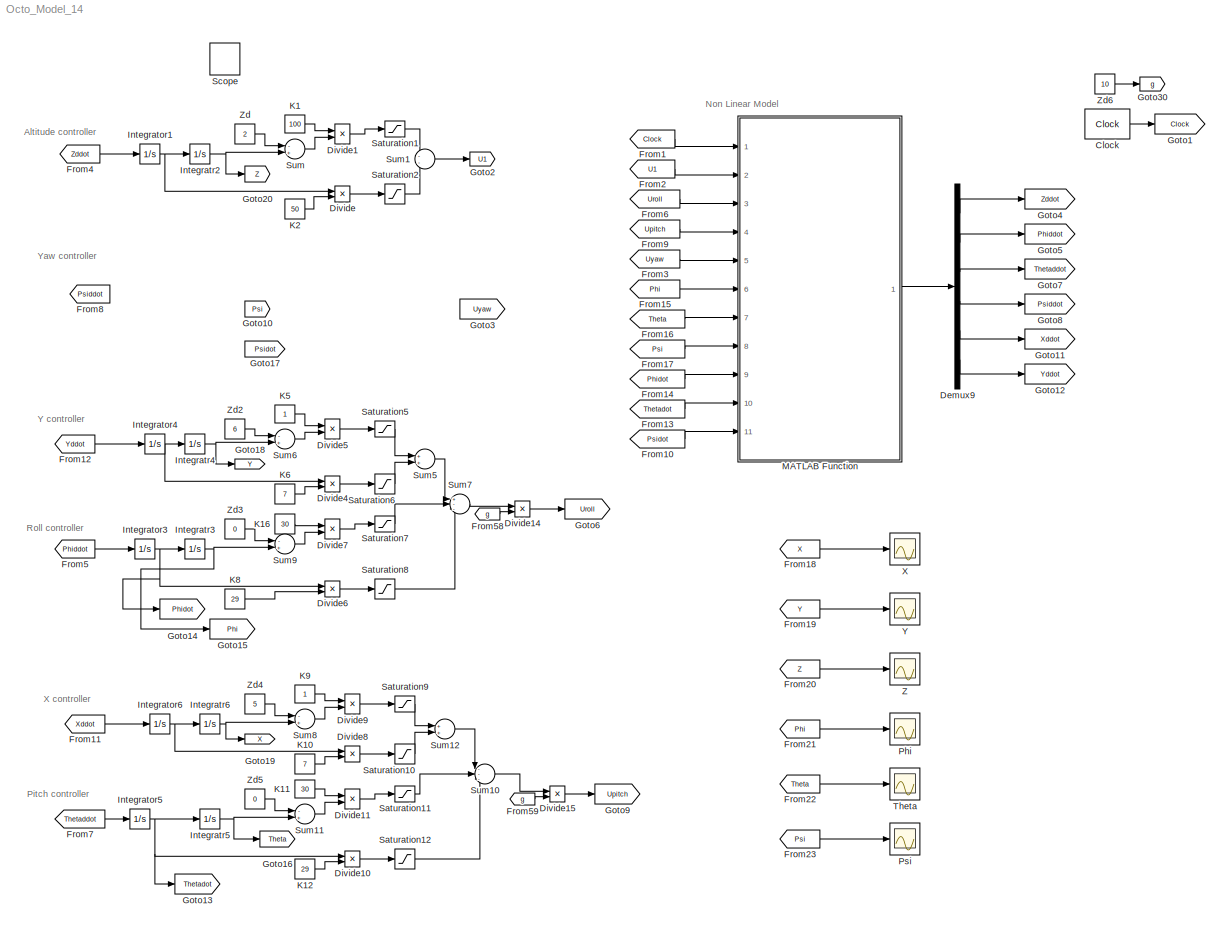
MODEL Octo_Model_14
KIND model
BLOCK [Clock] Clock
  DisplayTime = on
  SID = 1
BLOCK [Demux] Demux9
  DisplayOption = bar
  Outputs = 6
  Ports = [1, 6]
  SID = 2
BLOCK [Product] Divide
  InputSameDT = off
  Inputs = **
  OutDataTypeStr = Inherit: Inherit via internal rule
  Ports = [2, 1]
  RndMeth = Floor
  SID = 3
  SaturateOnIntegerOverflow = off
BLOCK [Product] Divide1
  InputSameDT = off
  Inputs = **
  OutDataTypeStr = Inherit: Inherit via internal rule
  Ports = [2, 1]
  RndMeth = Floor
  SID = 4
  SaturateOnIntegerOverflow = off
BLOCK [Product] Divide10
  InputSameDT = off
  Inputs = **
  OutDataTypeStr = Inherit: Inherit via internal rule
  Ports = [2, 1]
  RndMeth = Floor
  SID = 5
  SaturateOnIntegerOverflow = off
BLOCK [Product] Divide11
  InputSameDT = off
  Inputs = **
  OutDataTypeStr = Inherit: Inherit via internal rule
  Ports = [2, 1]
  RndMeth = Floor
  SID = 6
  SaturateOnIntegerOverflow = off
BLOCK [Product] Divide14
  InputSameDT = off
  Inputs = */
  OutDataTypeStr = Inherit: Inherit via internal rule
  Ports = [2, 1]
  RndMeth = Floor
  SID = 7
  SaturateOnIntegerOverflow = off
BLOCK [Product] Divide15
  InputSameDT = off
  Inputs = */
  OutDataTypeStr = Inherit: Inherit via internal rule
  Ports = [2, 1]
  RndMeth = Floor
  SID = 8
  SaturateOnIntegerOverflow = off
BLOCK [Product] Divide4
  InputSameDT = off
  Inputs = **
  OutDataTypeStr = Inherit: Inherit via internal rule
  Ports = [2, 1]
  RndMeth = Floor
  SID = 11
  SaturateOnIntegerOverflow = off
BLOCK [Product] Divide5
  InputSameDT = off
  Inputs = **
  OutDataTypeStr = Inherit: Inherit via internal rule
  Ports = [2, 1]
  RndMeth = Floor
  SID = 12
  SaturateOnIntegerOverflow = off
BLOCK [Product] Divide6
  InputSameDT = off
  Inputs = **
  OutDataTypeStr = Inherit: Inherit via internal rule
  Ports = [2, 1]
  RndMeth = Floor
  SID = 13
  SaturateOnIntegerOverflow = off
BLOCK [Product] Divide7
  InputSameDT = off
  Inputs = **
  OutDataTypeStr = Inherit: Inherit via internal rule
  Ports = [2, 1]
  RndMeth = Floor
  SID = 14
  SaturateOnIntegerOverflow = off
BLOCK [Product] Divide8
  InputSameDT = off
  Inputs = **
  OutDataTypeStr = Inherit: Inherit via internal rule
  Ports = [2, 1]
  RndMeth = Floor
  SID = 15
  SaturateOnIntegerOverflow = off
BLOCK [Product] Divide9
  InputSameDT = off
  Inputs = **
  OutDataTypeStr = Inherit: Inherit via internal rule
  Ports = [2, 1]
  RndMeth = Floor
  SID = 16
  SaturateOnIntegerOverflow = off
BLOCK [From] From1
  GotoTag = Clock
  SID = 187
BLOCK [From] From10
  GotoTag = Psidot
  SID = 208
BLOCK [From] From11
  GotoTag = Xddot
  SID = 216
BLOCK [From] From12
  GotoTag = Yddot
  SID = 217
BLOCK [From] From13
  GotoTag = Thetadot
  SID = 227
BLOCK [From] From14
  GotoTag = Phidot
  SID = 229
BLOCK [From] From15
  GotoTag = Phi
  SID = 231
BLOCK [From] From16
  GotoTag = Theta
  SID = 233
BLOCK [From] From17
  GotoTag = Psi
  SID = 235
BLOCK [From] From18
  GotoTag = X
  SID = 249
BLOCK [From] From19
  GotoTag = Y
  SID = 250
BLOCK [From] From2
  GotoTag = U1
  SID = 190
BLOCK [From] From20
  GotoTag = Z
  SID = 251
BLOCK [From] From21
  GotoTag = Phi
  SID = 252
BLOCK [From] From22
  GotoTag = Theta
  SID = 253
BLOCK [From] From23
  GotoTag = Psi
  SID = 254
BLOCK [From] From3
  GotoTag = Uyaw
  SID = 192
BLOCK [From] From4
  GotoTag = Zddot
  SID = 194
BLOCK [From] From5
  GotoTag = Phiddot
  SID = 196
BLOCK [From] From58
  GotoTag = g
  SID = 43
BLOCK [From] From59
  GotoTag = g
  SID = 44
BLOCK [From] From6
  GotoTag = Uroll
  SID = 197
BLOCK [From] From7
  GotoTag = Thetaddot
  SID = 200
BLOCK [From] From8
  GotoTag = Psiddot
  SID = 264
BLOCK [From] From9
  GotoTag = Upitch
  SID = 206
BLOCK [Goto] Goto1
  GotoTag = Clock
  SID = 185
BLOCK [Goto] Goto10
  GotoTag = Psi
  SID = 274
BLOCK [Goto] Goto11
  GotoTag = Xddot
  SID = 215
BLOCK [Goto] Goto12
  GotoTag = Yddot
  SID = 218
BLOCK [Goto] Goto13
  GotoTag = Thetadot
  SID = 226
BLOCK [Goto] Goto14
  GotoTag = Phidot
  SID = 228
BLOCK [Goto] Goto15
  GotoTag = Phi
  SID = 230
BLOCK [Goto] Goto16
  GotoTag = Theta
  SID = 232
BLOCK [Goto] Goto17
  GotoTag = Psidot
  SID = 275
BLOCK [Goto] Goto18
  GotoTag = Y
  SID = 247
BLOCK [Goto] Goto19
  GotoTag = X
  SID = 248
BLOCK [Goto] Goto2
  GotoTag = U1
  SID = 189
BLOCK [Goto] Goto20
  GotoTag = Z
  SID = 262
BLOCK [Goto] Goto3
  GotoTag = Uyaw
  SID = 273
BLOCK [Goto] Goto30
  GotoTag = g
  SID = 68
BLOCK [Goto] Goto4
  GotoTag = Zddot
  SID = 193
BLOCK [Goto] Goto5
  GotoTag = Phiddot
  SID = 195
BLOCK [Goto] Goto6
  GotoTag = Uroll
  SID = 198
BLOCK [Goto] Goto7
  GotoTag = Thetaddot
  SID = 199
BLOCK [Goto] Goto8
  GotoTag = Psiddot
  SID = 204
BLOCK [Goto] Goto9
  GotoTag = Upitch
  SID = 205
BLOCK [Integrator] Integrator1
  Ports = [1, 1]
  SID = 88
BLOCK [Integrator] Integrator3
  Ports = [1, 1]
  SID = 90
BLOCK [Integrator] Integrator4
  IgnoreLimit = on
  Ports = [1, 1]
  SID = 91
BLOCK [Integrator] Integrator5
  Ports = [1, 1]
  SID = 92
BLOCK [Integrator] Integrator6
  Ports = [1, 1]
  SID = 93
BLOCK [Integrator] Integratr2
  Ports = [1, 1]
  SID = 95
BLOCK [Integrator] Integratr3
  Ports = [1, 1]
  SID = 96
BLOCK [Integrator] Integratr4
  IgnoreLimit = on
  Ports = [1, 1]
  SID = 97
BLOCK [Integrator] Integratr5
  Ports = [1, 1]
  SID = 98
BLOCK [Integrator] Integratr6
  Ports = [1, 1]
  SID = 99
BLOCK [Constant] K1
  SID = 100
  Value = 100
BLOCK [Constant] K10
  SID = 101
  Value = 7
BLOCK [Constant] K11
  SID = 102
  Value = 30
BLOCK [Constant] K12
  SID = 103
  Value = 29
BLOCK [Constant] K16
  SID = 104
  Value = 30
BLOCK [Constant] K2
  SID = 105
  Value = 50
BLOCK [Constant] K5
  SID = 108
BLOCK [Constant] K6
  SID = 109
  Value = 7
BLOCK [Constant] K8
  SID = 110
  Value = 29
BLOCK [Constant] K9
  SID = 111
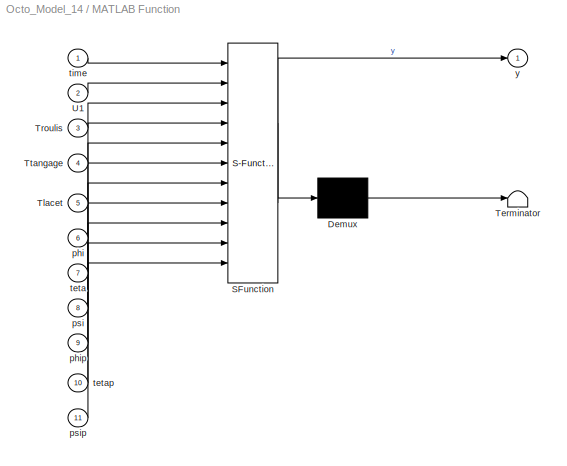
BLOCK [SubSystem] MATLAB Function
  ErrorFcn = Stateflow.Translate.translate
  PermitHierarchicalResolution = ParametersOnly
  Ports = [11, 1]
  RequestExecContextInheritance = off
  SFBlockType = MATLAB Function
  SID = 112
  TreatAsAtomicUnit = on
  Variant = off
BLOCK [Demux] MATLAB Function/ Demux 
  Outputs = 1
  Ports = [1, 1]
  SID = 112::166
BLOCK [S-Function] MATLAB Function/ SFunction 
  EnableBusSupport = on
  FunctionName = sf_sfun
  PortCounts = [11 2]
  Ports = [11, 2]
  SFunctionDeploymentMode = off
  SID = 112::165
  Tag = Stateflow S-Function Octo_Model_14 2
BLOCK [Terminator] MATLAB Function/ Terminator 
  SID = 112::167
BLOCK [Inport] MATLAB Function/Tlacet
  IconDisplay = Port number
  Port = 5
  SID = 112::158
BLOCK [Inport] MATLAB Function/Troulis
  IconDisplay = Port number
  Port = 3
  SID = 112::156
BLOCK [Inport] MATLAB Function/Ttangage
  IconDisplay = Port number
  Port = 4
  SID = 112::157
BLOCK [Inport] MATLAB Function/U1
  IconDisplay = Port number
  Port = 2
  SID = 112::155
BLOCK [Inport] MATLAB Function/phi
  IconDisplay = Port number
  Port = 6
  SID = 112::159
BLOCK [Inport] MATLAB Function/phip
  IconDisplay = Port number
  Port = 9
  SID = 112::141
BLOCK [Inport] MATLAB Function/psi
  IconDisplay = Port number
  Port = 8
  SID = 112::161
BLOCK [Inport] MATLAB Function/psip
  IconDisplay = Port number
  Port = 11
  SID = 112::143
BLOCK [Inport] MATLAB Function/teta
  IconDisplay = Port number
  Port = 7
  SID = 112::160
BLOCK [Inport] MATLAB Function/tetap
  IconDisplay = Port number
  Port = 10
  SID = 112::142
BLOCK [Inport] MATLAB Function/time
  IconDisplay = Port number
  SID = 112::140
BLOCK [Outport] MATLAB Function/y
  IconDisplay = Port number
  SID = 112::162
BLOCK [Scope] Phi
  DataFormat = StructureWithTime
  Decimation = 1
  Grid = on
  LimitDataPoints = off
  MaxDataPoints = 5000
  Ports = [1]
  SID = 259
  SampleInput = off
  SampleTime = -1
  SaveName = ScopeData4
  SaveToWorkspace = off
  ShowLegends = off
  TickLabels = OneTimeTick
  TimeRange = auto
  YMax = 0.06505
  YMin = -0.10323
  ZoomMode = on
BLOCK [Scope] Psi
  DataFormat = StructureWithTime
  Decimation = 1
  Grid = on
  LimitDataPoints = off
  MaxDataPoints = 5000
  Ports = [1]
  SID = 261
  SampleInput = off
  SampleTime = -1
  SaveName = ScopeData6
  SaveToWorkspace = off
  ShowLegends = off
  TickLabels = OneTimeTick
  TimeRange = auto
  YMax = 0.00004
  YMin = -0.00039
  ZoomMode = on
BLOCK [Saturate] Saturation1
  InputPortMap = u0
  LowerLimit = -20
  Ports = [1, 1]
  SID = 120
  UpperLimit = 20
BLOCK [Saturate] Saturation10
  InputPortMap = u0
  LowerLimit = -8
  Ports = [1, 1]
  SID = 121
  UpperLimit = 8
BLOCK [Saturate] Saturation11
  InputPortMap = u0
  LowerLimit = -15
  Ports = [1, 1]
  SID = 122
  UpperLimit = 15
BLOCK [Saturate] Saturation12
  InputPortMap = u0
  LowerLimit = -30
  Ports = [1, 1]
  SID = 123
  UpperLimit = 30
BLOCK [Saturate] Saturation2
  InputPortMap = u0
  LowerLimit = -20
  Ports = [1, 1]
  SID = 124
  UpperLimit = 20
BLOCK [Saturate] Saturation5
  InputPortMap = u0
  LowerLimit = -15
  Ports = [1, 1]
  SID = 127
  UpperLimit = 15
BLOCK [Saturate] Saturation6
  InputPortMap = u0
  LowerLimit = -20
  Ports = [1, 1]
  SID = 128
  UpperLimit = 20
BLOCK [Saturate] Saturation7
  InputPortMap = u0
  LowerLimit = -20
  Ports = [1, 1]
  SID = 129
  UpperLimit = 20
BLOCK [Saturate] Saturation8
  InputPortMap = u0
  LowerLimit = -30
  Ports = [1, 1]
  SID = 130
  UpperLimit = 30
BLOCK [Saturate] Saturation9
  InputPortMap = u0
  LowerLimit = -6
  Ports = [1, 1]
  SID = 131
  UpperLimit = 6
BLOCK [SignalViewerScope] Scope
  DataFormat = StructureWithTime
  Decimation = 1
  Grid = on
  IOType = viewer
  LimitDataPoints = off
  MaxDataPoints = 5000
  Ports = []
  SID = 255
  SampleInput = off
  SampleTime = -1
  SaveName = ScopeData
  SaveToWorkspace = off
  ShowLegends = off
  TickLabels = OneTimeTick
  TimeRange = auto
  YMax = 5.78876
  YMin = -0.6432
  ZoomMode = on
BLOCK [Sum] Sum
  InputSameDT = off
  Inputs = -+
  OutDataTypeStr = Inherit: Inherit via internal rule
  Ports = [2, 1]
  SID = 143
  SaturateOnIntegerOverflow = off
BLOCK [Sum] Sum1
  IconShape = round
  InputSameDT = off
  Inputs = --
  OutDataTypeStr = Inherit: Inherit via internal rule
  Ports = [2, 1]
  SID = 144
  SaturateOnIntegerOverflow = off
BLOCK [Sum] Sum10
  IconShape = round
  InputSameDT = off
  Inputs = ---
  OutDataTypeStr = Inherit: Inherit via internal rule
  Ports = [3, 1]
  SID = 145
  SaturateOnIntegerOverflow = off
BLOCK [Sum] Sum11
  InputSameDT = off
  Inputs = -+
  OutDataTypeStr = Inherit: Inherit via internal rule
  Ports = [2, 1]
  SID = 146
  SaturateOnIntegerOverflow = off
BLOCK [Sum] Sum12
  InputSameDT = off
  OutDataTypeStr = Inherit: Inherit via internal rule
  Ports = [2, 1]
  SID = 147
  SaturateOnIntegerOverflow = off
BLOCK [Sum] Sum5
  InputSameDT = off
  OutDataTypeStr = Inherit: Inherit via internal rule
  Ports = [2, 1]
  SID = 151
  SaturateOnIntegerOverflow = off
BLOCK [Sum] Sum6
  InputSameDT = off
  Inputs = -+
  OutDataTypeStr = Inherit: Inherit via internal rule
  Ports = [2, 1]
  SID = 152
  SaturateOnIntegerOverflow = off
BLOCK [Sum] Sum7
  IconShape = round
  InputSameDT = off
  Inputs = +--
  OutDataTypeStr = Inherit: Inherit via internal rule
  Ports = [3, 1]
  SID = 153
  SaturateOnIntegerOverflow = off
BLOCK [Sum] Sum8
  InputSameDT = off
  Inputs = -+
  OutDataTypeStr = Inherit: Inherit via internal rule
  Ports = [2, 1]
  SID = 154
  SaturateOnIntegerOverflow = off
BLOCK [Sum] Sum9
  InputSameDT = off
  Inputs = -+
  OutDataTypeStr = Inherit: Inherit via internal rule
  Ports = [2, 1]
  SID = 155
  SaturateOnIntegerOverflow = off
BLOCK [Scope] Theta
  DataFormat = StructureWithTime
  Decimation = 1
  Grid = on
  LimitDataPoints = off
  MaxDataPoints = 5000
  Ports = [1]
  SID = 260
  SampleInput = off
  SampleTime = -1
  SaveName = ScopeData5
  SaveToWorkspace = off
  ShowLegends = off
  TickLabels = OneTimeTick
  TimeRange = auto
  YMax = 0.08607
  YMin = -0.0542
  ZoomMode = on
BLOCK [Scope] X
  DataFormat = StructureWithTime
  Decimation = 1
  Grid = on
  LimitDataPoints = off
  MaxDataPoints = 5000
  Ports = [1]
  SID = 256
  SampleInput = off
  SampleTime = -1
  SaveName = ScopeData1
  SaveToWorkspace = off
  ShowLegends = off
  TickLabels = OneTimeTick
  TimeRange = auto
  YMax = 5.625
  YMin = -0.625
  ZoomMode = on
BLOCK [Scope] Y
  DataFormat = StructureWithTime
  Decimation = 1
  Grid = on
  LimitDataPoints = off
  MaxDataPoints = 5000
  Ports = [1]
  SID = 257
  SampleInput = off
  SampleTime = -1
  SaveName = ScopeData2
  SaveToWorkspace = off
  ShowLegends = off
  TickLabels = OneTimeTick
  TimeRange = auto
  YMax = 6.75
  YMin = -0.75
  ZoomMode = on
BLOCK [Scope] Z
  DataFormat = StructureWithTime
  Decimation = 1
  Grid = on
  LimitDataPoints = off
  MaxDataPoints = 5000
  Ports = [1]
  SID = 258
  SampleInput = off
  SampleTime = -1
  SaveName = ScopeData3
  SaveToWorkspace = off
  ShowLegends = off
  TickLabels = OneTimeTick
  TimeRange = auto
  YMax = 2.25
  YMin = -0.25
  ZoomMode = on
BLOCK [Constant] Zd
  SID = 163
  Value = 2
BLOCK [Constant] Zd2
  SID = 165
  Value = 6
BLOCK [Constant] Zd3
  SID = 166
  Value = 0
BLOCK [Constant] Zd4
  SID = 167
  Value = 5
BLOCK [Constant] Zd5
  SID = 168
  Value = 0
BLOCK [Constant] Zd6
  SID = 169
  Value = 10
ANNOTATION (root): \n \n Altitude controller
ANNOTATION (root): \n \n Yaw controller
ANNOTATION (root): \n \n Non Linear Model
ANNOTATION (root): \n \n Pitch controller
ANNOTATION (root): \n \n Roll controller
ANNOTATION (root): \n \n X controller
ANNOTATION (root): \n \n Y controller
LINE Clock:1 -> Goto1:1
LINE Demux9:1 -> Goto4:1
LINE Demux9:2 -> Goto5:1
LINE Demux9:3 -> Goto7:1
LINE Demux9:4 -> Goto8:1
LINE Demux9:5 -> Goto11:1
LINE Demux9:6 -> Goto12:1
LINE Divide10:1 -> Saturation12:1
LINE Divide11:1 -> Saturation11:1
LINE Divide14:1 -> Goto6:1
LINE Divide15:1 -> Goto9:1
LINE Divide1:1 -> Saturation1:1
LINE Divide4:1 -> Saturation6:1
LINE Divide5:1 -> Saturation5:1
LINE Divide6:1 -> Saturation8:1
LINE Divide7:1 -> Saturation7:1
LINE Divide8:1 -> Saturation10:1
LINE Divide9:1 -> Saturation9:1
LINE Divide:1 -> Saturation2:1
LINE From10:1 -> MATLAB Function:11
LINE From11:1 -> Integrator6:1
LINE From12:1 -> Integrator4:1
LINE From13:1 -> MATLAB Function:10
LINE From14:1 -> MATLAB Function:9
LINE From15:1 -> MATLAB Function:6
LINE From16:1 -> MATLAB Function:7
LINE From17:1 -> MATLAB Function:8
LINE From18:1 -> X:1
LINE From19:1 -> Y:1
LINE From1:1 -> MATLAB Function:1
LINE From20:1 -> Z:1
LINE From21:1 -> Phi:1
LINE From22:1 -> Theta:1
LINE From23:1 -> Psi:1
LINE From2:1 -> MATLAB Function:2
LINE From3:1 -> MATLAB Function:5
LINE From4:1 -> Integrator1:1
LINE From58:1 -> Divide14:2
LINE From59:1 -> Divide15:2
LINE From5:1 -> Integrator3:1
LINE From6:1 -> MATLAB Function:3
LINE From7:1 -> Integrator5:1
LINE From9:1 -> MATLAB Function:4
NET Integrator1:1 -> Divide:1, Integratr2:1
NET Integrator3:1 -> Divide6:1, Goto14:1, Integratr3:1
NET Integrator4:1 -> Divide4:1, Integratr4:1
NET Integrator5:1 -> Divide10:1, Goto13:1, Integratr5:1
NET Integrator6:1 -> Divide8:1, Integratr6:1
NET Integratr2:1 -> Goto20:1, Sum:2
NET Integratr3:1 -> Goto15:1, Sum9:2
NET Integratr4:1 -> Goto18:1, Sum6:2
NET Integratr5:1 -> Goto16:1, Sum11:2
NET Integratr6:1 -> Goto19:1, Sum8:2
LINE K10:1 -> Divide8:2
LINE K11:1 -> Divide11:1
LINE K12:1 -> Divide10:2
LINE K16:1 -> Divide7:1
LINE K1:1 -> Divide1:1
LINE K2:1 -> Divide:2
LINE K5:1 -> Divide5:1
LINE K6:1 -> Divide4:2
LINE K8:1 -> Divide6:2
LINE K9:1 -> Divide9:1
LINE MATLAB Function/ Demux :1 -> MATLAB Function/ Terminator :1
LINE MATLAB Function/ SFunction :1 -> MATLAB Function/ Demux :1
LINE MATLAB Function/ SFunction :2 -> MATLAB Function/y:1
LINE MATLAB Function/Tlacet:1 -> MATLAB Function/ SFunction :5
LINE MATLAB Function/Troulis:1 -> MATLAB Function/ SFunction :3
LINE MATLAB Function/Ttangage:1 -> MATLAB Function/ SFunction :4
LINE MATLAB Function/U1:1 -> MATLAB Function/ SFunction :2
LINE MATLAB Function/phi:1 -> MATLAB Function/ SFunction :6
LINE MATLAB Function/phip:1 -> MATLAB Function/ SFunction :9
LINE MATLAB Function/psi:1 -> MATLAB Function/ SFunction :8
LINE MATLAB Function/psip:1 -> MATLAB Function/ SFunction :11
LINE MATLAB Function/teta:1 -> MATLAB Function/ SFunction :7
LINE MATLAB Function/tetap:1 -> MATLAB Function/ SFunction :10
LINE MATLAB Function/time:1 -> MATLAB Function/ SFunction :1
LINE MATLAB Function:1 -> Demux9:1
LINE Saturation10:1 -> Sum12:2
LINE Saturation11:1 -> Sum10:2
LINE Saturation12:1 -> Sum10:3
LINE Saturation1:1 -> Sum1:1
LINE Saturation2:1 -> Sum1:2
LINE Saturation5:1 -> Sum5:1
LINE Saturation6:1 -> Sum5:2
LINE Saturation7:1 -> Sum7:2
LINE Saturation8:1 -> Sum7:3
LINE Saturation9:1 -> Sum12:1
LINE Sum10:1 -> Divide15:1
LINE Sum11:1 -> Divide11:2
LINE Sum12:1 -> Sum10:1
LINE Sum1:1 -> Goto2:1
LINE Sum5:1 -> Sum7:1
LINE Sum6:1 -> Divide5:2
LINE Sum7:1 -> Divide14:1
LINE Sum8:1 -> Divide9:2
LINE Sum9:1 -> Divide7:2
LINE Sum:1 -> Divide1:2
LINE Zd2:1 -> Sum6:1
LINE Zd3:1 -> Sum9:1
LINE Zd4:1 -> Sum8:1
LINE Zd5:1 -> Sum11:1
LINE Zd6:1 -> Goto30:1
LINE Zd:1 -> Sum:1
note: NET lines group one-source signal fan-out (src -> all destinations, sorted); 1:1 wires keep LINE
CHART MATLAB Function states=1 transitions=1
  STATE_LABEL 'eML_blk_kernel()'
